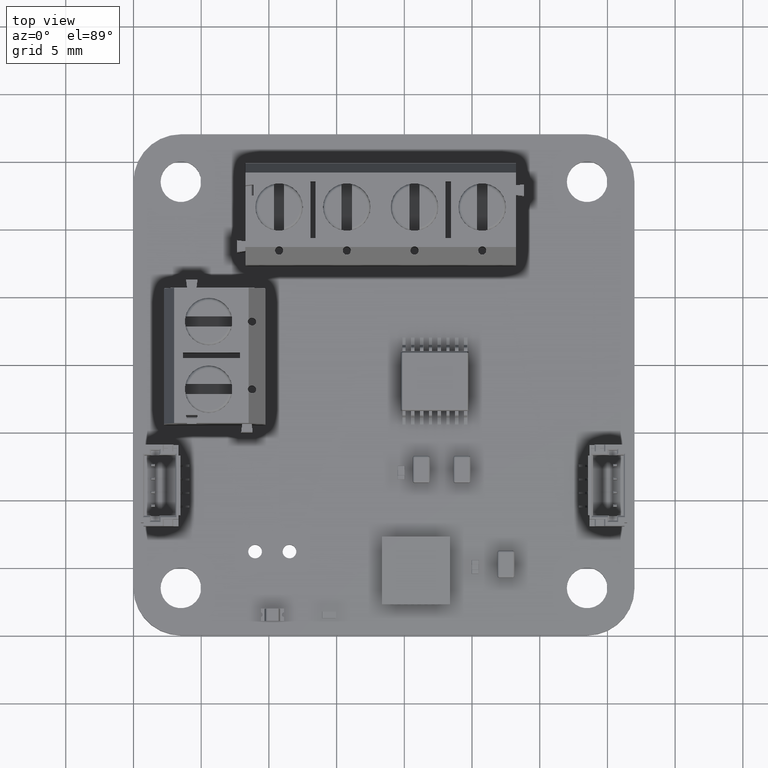
[diagram: clean part render]
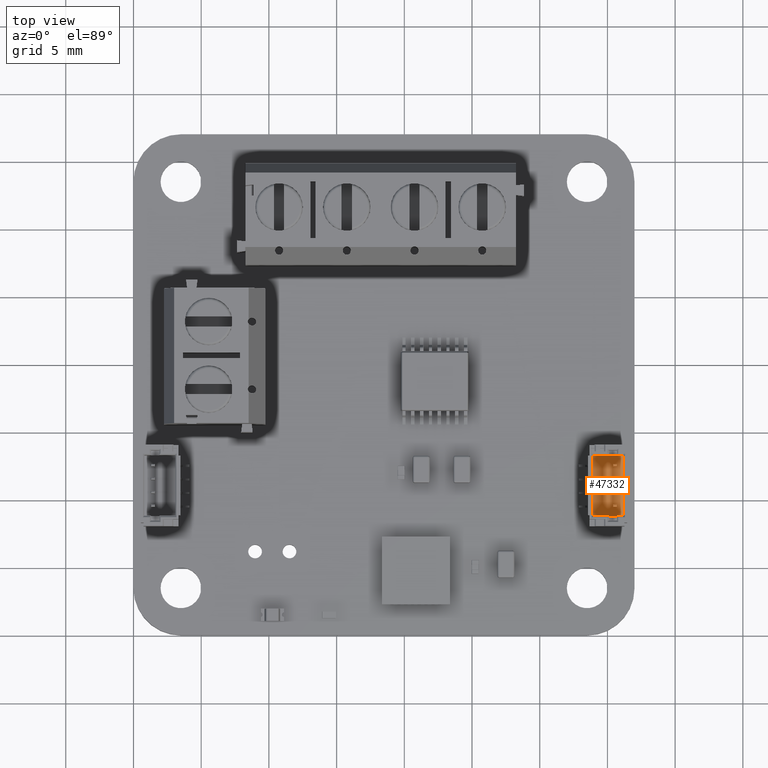
[diagram: same view with one face highlighted and labeled with its STEP entity id]
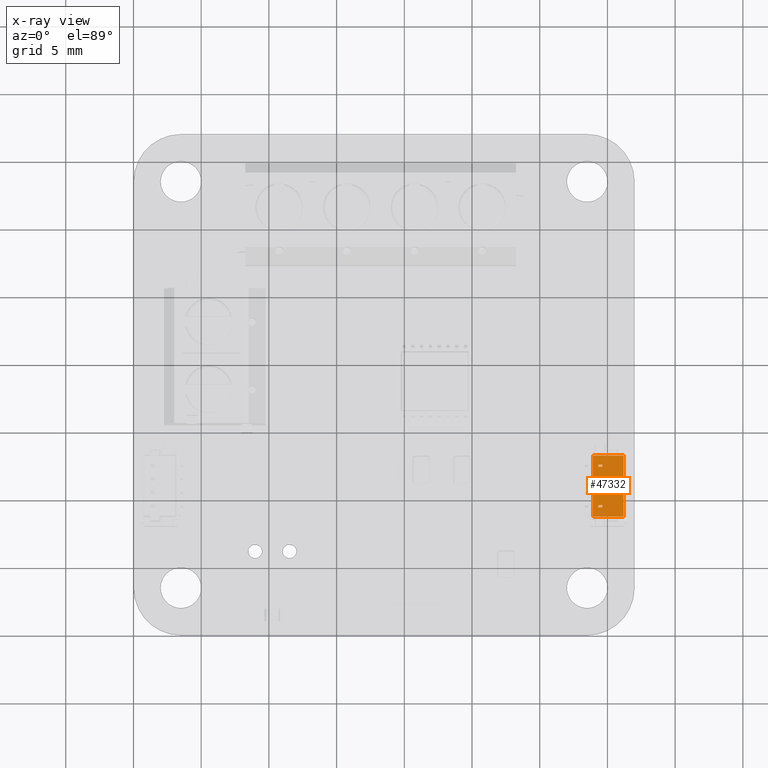
[diagram: x-ray of the same camera — body ghosted, the highlighted face saturated]
A machine part, top view. The second image highlights one B-rep face of the part: STEP entity #47332.
The next image is the same camera in x-ray: the body ghosted, the highlighted face saturated — about 0% of this face is hidden behind the body in this view.
In plain terms, the highlighted planar face has unit normal (-0, -0, 1).
Its self-contained STEP definition (entity closure, byte-faithful):
#47332 = ADVANCED_FACE('',(#47333,#47367,#47401,#47435,#47469),#47503,
  .T.);
#47333 = FACE_BOUND('',#47334,.T.);
#47334 = EDGE_LOOP('',(#47335,#47345,#47353,#47361));
#47335 = ORIENTED_EDGE('',*,*,#47336,.F.);
#47336 = EDGE_CURVE('',#47337,#47339,#47341,.T.);
#47337 = VERTEX_POINT('',#47338);
#47338 = CARTESIAN_POINT('',(-0.575,1.15,0.38));
#47339 = VERTEX_POINT('',#47340);
#47340 = CARTESIAN_POINT('',(-0.575,1.15,0.68));
#47341 = LINE('',#47342,#47343);
#47342 = CARTESIAN_POINT('',(-0.575,1.15,0.));
#47343 = VECTOR('',#47344,1.);
#47344 = DIRECTION('',(0.,0.,1.));
#47345 = ORIENTED_EDGE('',*,*,#47346,.T.);
#47346 = EDGE_CURVE('',#47337,#47347,#47349,.T.);
#47347 = VERTEX_POINT('',#47348);
#47348 = CARTESIAN_POINT('',(-0.425,1.15,0.38));
#47349 = LINE('',#47350,#47351);
#47350 = CARTESIAN_POINT('',(0.,1.15,0.38));
#47351 = VECTOR('',#47352,1.);
#47352 = DIRECTION('',(1.,-0.,0.));
#47353 = ORIENTED_EDGE('',*,*,#47354,.T.);
#47354 = EDGE_CURVE('',#47347,#47355,#47357,.T.);
#47355 = VERTEX_POINT('',#47356);
#47356 = CARTESIAN_POINT('',(-0.425,1.15,0.68));
#47357 = LINE('',#47358,#47359);
#47358 = CARTESIAN_POINT('',(-0.425,1.15,0.));
#47359 = VECTOR('',#47360,1.);
#47360 = DIRECTION('',(0.,0.,1.));
#47361 = ORIENTED_EDGE('',*,*,#47362,.F.);
#47362 = EDGE_CURVE('',#47339,#47355,#47363,.T.);
#47363 = LINE('',#47364,#47365);
#47364 = CARTESIAN_POINT('',(0.,1.15,0.68));
#47365 = VECTOR('',#47366,1.);
#47366 = DIRECTION('',(1.,-0.,0.));
#47367 = FACE_BOUND('',#47368,.T.);
#47368 = EDGE_LOOP('',(#47369,#47379,#47387,#47395));
#47369 = ORIENTED_EDGE('',*,*,#47370,.F.);
#47370 = EDGE_CURVE('',#47371,#47373,#47375,.T.);
#47371 = VERTEX_POINT('',#47372);
#47372 = CARTESIAN_POINT('',(0.425,1.15,0.38));
#47373 = VERTEX_POINT('',#47374);
#47374 = CARTESIAN_POINT('',(0.425,1.15,0.68));
#47375 = LINE('',#47376,#47377);
#47376 = CARTESIAN_POINT('',(0.425,1.15,-0.));
#47377 = VECTOR('',#47378,1.);
#47378 = DIRECTION('',(0.,0.,1.));
#47379 = ORIENTED_EDGE('',*,*,#47380,.T.);
#47380 = EDGE_CURVE('',#47371,#47381,#47383,.T.);
#47381 = VERTEX_POINT('',#47382);
#47382 = CARTESIAN_POINT('',(0.575,1.15,0.38));
#47383 = LINE('',#47384,#47385);
#47384 = CARTESIAN_POINT('',(0.,1.15,0.38));
#47385 = VECTOR('',#47386,1.);
#47386 = DIRECTION('',(1.,-0.,0.));
#47387 = ORIENTED_EDGE('',*,*,#47388,.T.);
#47388 = EDGE_CURVE('',#47381,#47389,#47391,.T.);
#47389 = VERTEX_POINT('',#47390);
#47390 = CARTESIAN_POINT('',(0.575,1.15,0.68));
#47391 = LINE('',#47392,#47393);
#47392 = CARTESIAN_POINT('',(0.575,1.15,-0.));
#47393 = VECTOR('',#47394,1.);
#47394 = DIRECTION('',(0.,0.,1.));
#47395 = ORIENTED_EDGE('',*,*,#47396,.F.);
#47396 = EDGE_CURVE('',#47373,#47389,#47397,.T.);
#47397 = LINE('',#47398,#47399);
#47398 = CARTESIAN_POINT('',(0.,1.15,0.68));
#47399 = VECTOR('',#47400,1.);
#47400 = DIRECTION('',(1.,-0.,0.));
#47401 = FACE_BOUND('',#47402,.T.);
#47402 = EDGE_LOOP('',(#47403,#47413,#47421,#47429));
#47403 = ORIENTED_EDGE('',*,*,#47404,.F.);
#47404 = EDGE_CURVE('',#47405,#47407,#47409,.T.);
#47405 = VERTEX_POINT('',#47406);
#47406 = CARTESIAN_POINT('',(1.425,1.15,0.38));
#47407 = VERTEX_POINT('',#47408);
#47408 = CARTESIAN_POINT('',(1.425,1.15,0.68));
#47409 = LINE('',#47410,#47411);
#47410 = CARTESIAN_POINT('',(1.425,1.15,-0.));
#47411 = VECTOR('',#47412,1.);
#47412 = DIRECTION('',(0.,0.,1.));
#47413 = ORIENTED_EDGE('',*,*,#47414,.T.);
#47414 = EDGE_CURVE('',#47405,#47415,#47417,.T.);
#47415 = VERTEX_POINT('',#47416);
#47416 = CARTESIAN_POINT('',(1.575,1.15,0.38));
#47417 = LINE('',#47418,#47419);
#47418 = CARTESIAN_POINT('',(0.,1.15,0.38));
#47419 = VECTOR('',#47420,1.);
#47420 = DIRECTION('',(1.,-0.,0.));
#47421 = ORIENTED_EDGE('',*,*,#47422,.T.);
#47422 = EDGE_CURVE('',#47415,#47423,#47425,.T.);
#47423 = VERTEX_POINT('',#47424);
#47424 = CARTESIAN_POINT('',(1.575,1.15,0.68));
#47425 = LINE('',#47426,#47427);
#47426 = CARTESIAN_POINT('',(1.575,1.15,-0.));
#47427 = VECTOR('',#47428,1.);
#47428 = DIRECTION('',(0.,0.,1.));
#47429 = ORIENTED_EDGE('',*,*,#47430,.F.);
#47430 = EDGE_CURVE('',#47407,#47423,#47431,.T.);
#47431 = LINE('',#47432,#47433);
#47432 = CARTESIAN_POINT('',(0.,1.15,0.68));
#47433 = VECTOR('',#47434,1.);
#47434 = DIRECTION('',(1.,-0.,0.));
#47435 = FACE_BOUND('',#47436,.T.);
#47436 = EDGE_LOOP('',(#47437,#47447,#47455,#47463));
#47437 = ORIENTED_EDGE('',*,*,#47438,.T.);
#47438 = EDGE_CURVE('',#47439,#47441,#47443,.T.);
#47439 = VERTEX_POINT('',#47440);
#47440 = CARTESIAN_POINT('',(-2.25,1.15,1.08));
#47441 = VERTEX_POINT('',#47442);
#47442 = CARTESIAN_POINT('',(2.25,1.15,1.08));
#47443 = LINE('',#47444,#47445);
#47444 = CARTESIAN_POINT('',(0.,1.15,1.08));
#47445 = VECTOR('',#47446,1.);
#47446 = DIRECTION('',(1.,-0.,0.));
#47447 = ORIENTED_EDGE('',*,*,#47448,.F.);
#47448 = EDGE_CURVE('',#47449,#47441,#47451,.T.);
#47449 = VERTEX_POINT('',#47450);
#47450 = CARTESIAN_POINT('',(2.25,1.15,-1.2));
#47451 = LINE('',#47452,#47453);
#47452 = CARTESIAN_POINT('',(2.25,1.15,0.));
#47453 = VECTOR('',#47454,1.);
#47454 = DIRECTION('',(0.,0.,1.));
#47455 = ORIENTED_EDGE('',*,*,#47456,.F.);
#47456 = EDGE_CURVE('',#47457,#47449,#47459,.T.);
#47457 = VERTEX_POINT('',#47458);
#47458 = CARTESIAN_POINT('',(-2.25,1.15,-1.2));
#47459 = LINE('',#47460,#47461);
#47460 = CARTESIAN_POINT('',(0.,1.15,-1.2));
#47461 = VECTOR('',#47462,1.);
#47462 = DIRECTION('',(1.,-0.,0.));
#47463 = ORIENTED_EDGE('',*,*,#47464,.T.);
#47464 = EDGE_CURVE('',#47457,#47439,#47465,.T.);
#47465 = LINE('',#47466,#47467);
#47466 = CARTESIAN_POINT('',(-2.25,1.15,8.3E-16));
#47467 = VECTOR('',#47468,1.);
#47468 = DIRECTION('',(3.7E-16,0.,1.));
#47469 = FACE_BOUND('',#47470,.T.);
#47470 = EDGE_LOOP('',(#47471,#47481,#47489,#47497));
#47471 = ORIENTED_EDGE('',*,*,#47472,.T.);
#47472 = EDGE_CURVE('',#47473,#47475,#47477,.T.);
#47473 = VERTEX_POINT('',#47474);
#47474 = CARTESIAN_POINT('',(-1.575,1.15,0.38));
#47475 = VERTEX_POINT('',#47476);
#47476 = CARTESIAN_POINT('',(-1.425,1.15,0.38));
#47477 = LINE('',#47478,#47479);
#47478 = CARTESIAN_POINT('',(0.,1.15,0.38));
#47479 = VECTOR('',#47480,1.);
#47480 = DIRECTION('',(1.,-0.,0.));
#47481 = ORIENTED_EDGE('',*,*,#47482,.T.);
#47482 = EDGE_CURVE('',#47475,#47483,#47485,.T.);
#47483 = VERTEX_POINT('',#47484);
#47484 = CARTESIAN_POINT('',(-1.425,1.15,0.68));
#47485 = LINE('',#47486,#47487);
#47486 = CARTESIAN_POINT('',(-1.425,1.15,0.));
#47487 = VECTOR('',#47488,1.);
#47488 = DIRECTION('',(0.,0.,1.));
#47489 = ORIENTED_EDGE('',*,*,#47490,.F.);
#47490 = EDGE_CURVE('',#47491,#47483,#47493,.T.);
#47491 = VERTEX_POINT('',#47492);
#47492 = CARTESIAN_POINT('',(-1.575,1.15,0.68));
#47493 = LINE('',#47494,#47495);
#47494 = CARTESIAN_POINT('',(0.,1.15,0.68));
#47495 = VECTOR('',#47496,1.);
#47496 = DIRECTION('',(1.,-0.,0.));
#47497 = ORIENTED_EDGE('',*,*,#47498,.F.);
#47498 = EDGE_CURVE('',#47473,#47491,#47499,.T.);
#47499 = LINE('',#47500,#47501);
#47500 = CARTESIAN_POINT('',(-1.575,1.15,0.));
#47501 = VECTOR('',#47502,1.);
#47502 = DIRECTION('',(0.,0.,1.));
#47503 = PLANE('',#47504);
#47504 = AXIS2_PLACEMENT_3D('',#47505,#47506,#47507);
#47505 = CARTESIAN_POINT('',(0.,1.15,0.));
#47506 = DIRECTION('',(0.,1.,-0.));
#47507 = DIRECTION('',(0.,0.,1.));